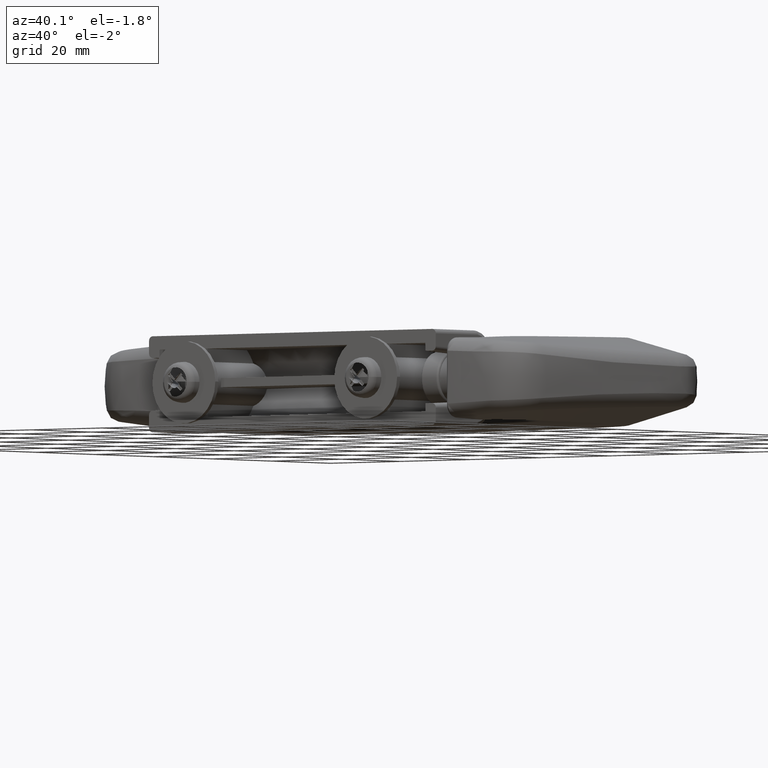
[diagram: clean part render]
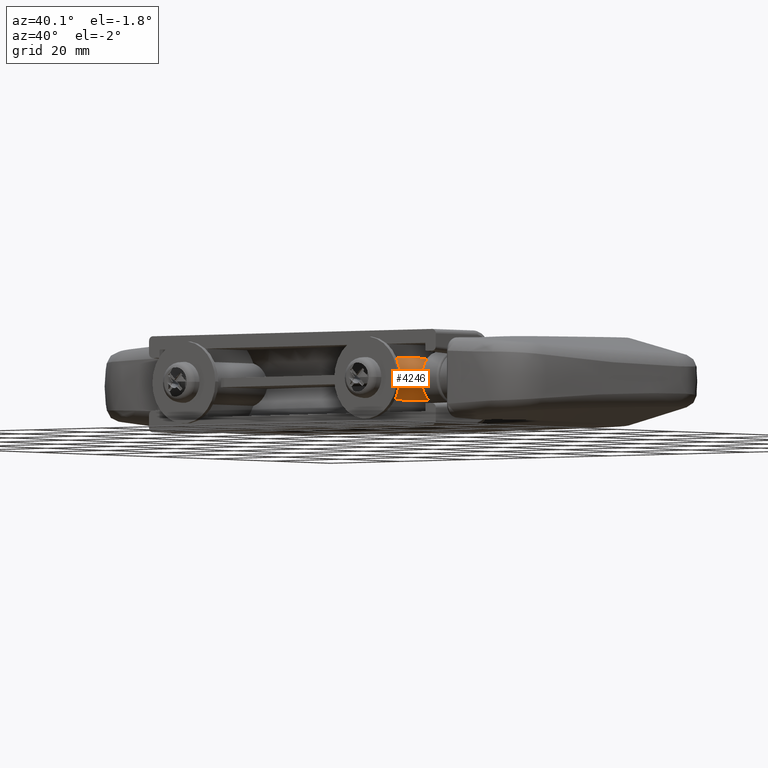
[diagram: same view with one face highlighted and labeled with its STEP entity id]
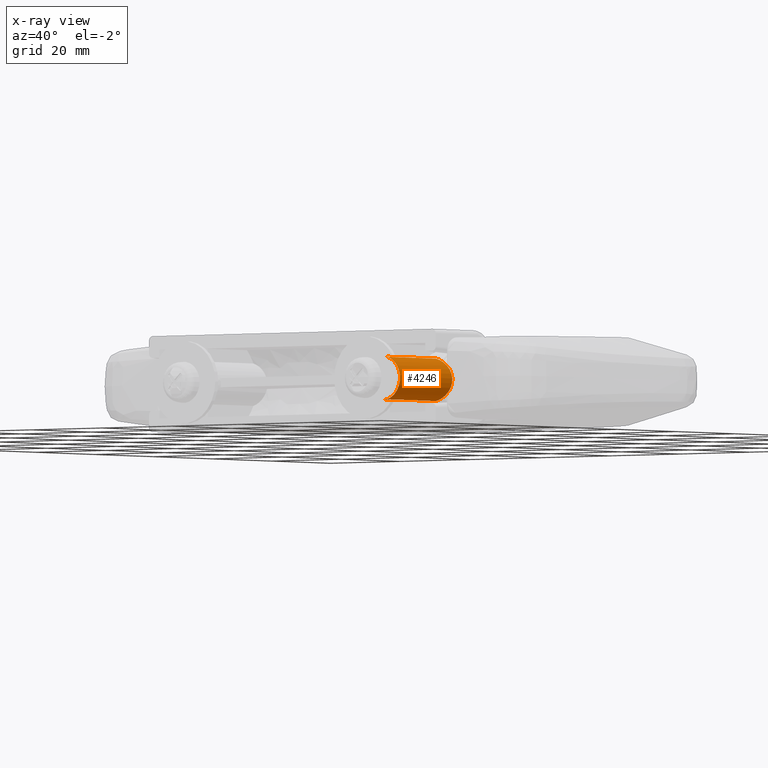
[diagram: x-ray of the same camera — body ghosted, the highlighted face saturated]
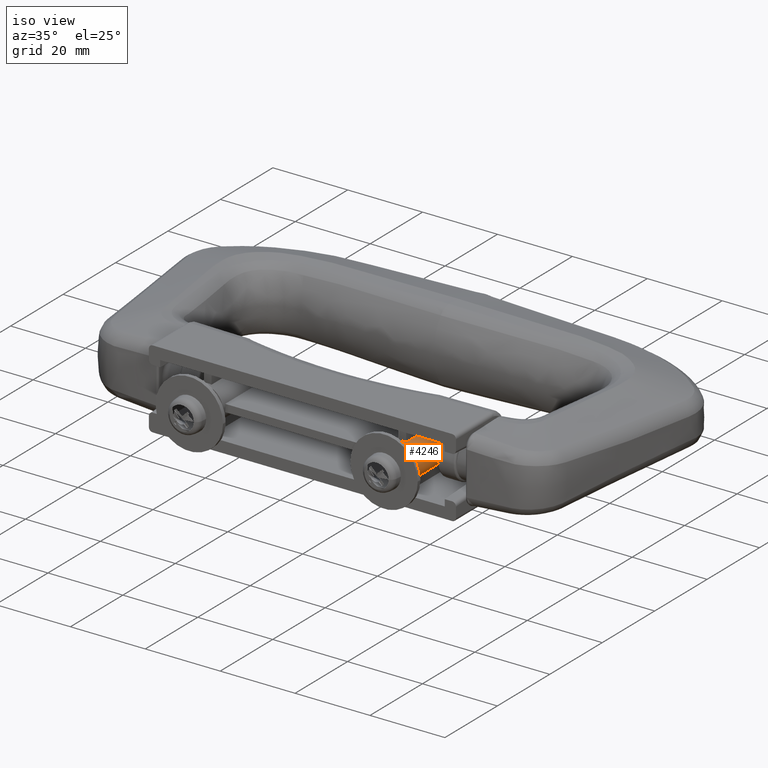
[diagram: same view with one face highlighted and labeled with its STEP entity id]
A machine part, auxiliary view. The second image highlights one B-rep face of the part: STEP entity #4246.
The next image is the same camera in x-ray: the body ghosted, the highlighted face saturated — about 0% of this face is hidden behind the body in this view.
A second angle (iso view) of the same face is appended — the face is thin or edge-on in the first view.
In plain terms, the highlighted cylindrical surface (edge-blend (fillet) strip) has radius 4.75 mm, axis along (-0, -1, -0).
Its self-contained STEP definition (entity closure, byte-faithful):
#327 = DIRECTION ( 'NONE',  ( 0.0000000000000000000, 1.000000000000000000, 0.0000000000000000000 ) ) ;
#435 = CARTESIAN_POINT ( 'NONE',  ( 28.02508257374490700, 16.81031448516132100, 4.305047742983723500 ) ) ;
#458 = VECTOR ( 'NONE', #14891, 1000.000000000000000 ) ;
#486 = CARTESIAN_POINT ( 'NONE',  ( 30.74987620718772200, 17.79994011339605800, 0.2778785948574167300 ) ) ;
#539 = CARTESIAN_POINT ( 'NONE',  ( 28.26398410360655300, 16.86941804879111100, -4.184179961310843700 ) ) ;
#660 = DIRECTION ( 'NONE',  ( 0.0000000000000000000, 0.0000000000000000000, -1.000000000000000000 ) ) ;
#878 = FACE_OUTER_BOUND ( 'NONE', #5424, .T. ) ;
#906 = CARTESIAN_POINT ( 'NONE',  ( 26.99999999999999600, 0.9999999999763531400, 4.643543905251678300 ) ) ;
#1174 = CARTESIAN_POINT ( 'NONE',  ( 26.99999999999999600, 0.9999999999763531400, -4.643543905251678300 ) ) ;
#1300 = ORIENTED_EDGE ( 'NONE', *, *, #15488, .T. ) ;
#1349 = CARTESIAN_POINT ( 'NONE',  ( 26.00000000000000000, 0.9999999999763531400, 0.0000000000000000000 ) ) ;
#1472 = CARTESIAN_POINT ( 'NONE',  ( 26.00000000000000000, 500000.0000000000600, 0.0000000000000000000 ) ) ;
#1593 = VERTEX_POINT ( 'NONE', #2210 ) ;
#1666 = CARTESIAN_POINT ( 'NONE',  ( 28.72138795296426000, 16.99730171424982600, 3.902371659246844700 ) ) ;
#1699 = CARTESIAN_POINT ( 'NONE',  ( 26.00000000000000000, 0.0000000000000000000, -4.750000000000000900 ) ) ;
#1721 = CARTESIAN_POINT ( 'NONE',  ( 30.72641726604576500, 17.78854121758022400, -0.5454029808521473300 ) ) ;
#1769 = CARTESIAN_POINT ( 'NONE',  ( 27.52847451237509400, 16.70781231319351400, -4.505381591677103600 ) ) ;
#2210 = CARTESIAN_POINT ( 'NONE',  ( 26.99999999999999600, 16.63112738771133100, -4.643543905251678300 ) ) ;
#2258 = AXIS2_PLACEMENT_3D ( 'NONE', #1472, #13755, #660 ) ;
#2314 = ORIENTED_EDGE ( 'NONE', *, *, #5993, .T. ) ;
#2575 = DIRECTION ( 'NONE',  ( 0.0000000000000000000, 0.0000000000000000000, -1.000000000000000000 ) ) ;
#2887 = CARTESIAN_POINT ( 'NONE',  ( 29.33182290581942200, 17.20030946078257400, 3.395787791628794400 ) ) ;
#2935 = CARTESIAN_POINT ( 'NONE',  ( 30.56275038287427000, 17.71105214065492500, -1.348124548711136600 ) ) ;
#2988 = CARTESIAN_POINT ( 'NONE',  ( 26.99999999999999600, 16.63112738771133100, -4.643543905251678300 ) ) ;
#3059 = AXIS2_PLACEMENT_3D ( 'NONE', #3689, #12016, #4875 ) ;
#3356 = CIRCLE ( 'NONE', #3059, 4.750000000000000900 ) ;
#3689 = CARTESIAN_POINT ( 'NONE',  ( 26.00000000000000000, 0.9999999999763531400, 0.0000000000000000000 ) ) ;
#4047 = CARTESIAN_POINT ( 'NONE',  ( 27.26734593513624100, 16.66384062093456100, 4.585970220025987300 ) ) ;
#4053 = VECTOR ( 'NONE', #9231, 1000.000000000000000 ) ;
#4091 = CARTESIAN_POINT ( 'NONE',  ( 29.85427868096976700, 17.40126337079676900, 2.788959524769022600 ) ) ;
#4146 = CARTESIAN_POINT ( 'NONE',  ( 30.26752078646657700, 17.57701010086558600, -2.102993780027234900 ) ) ;
#4246 = ADVANCED_FACE ( 'NONE', ( #878 ), #6896, .T. ) ;
#4424 = LINE ( 'NONE', #8042, #4053 ) ;
#4499 = DIRECTION ( 'NONE',  ( 0.0000000000000000000, 1.000000000000000000, 0.0000000000000000000 ) ) ;
#4518 = EDGE_CURVE ( 'NONE', #12891, #12140, #3356, .T. ) ;
#4766 = CARTESIAN_POINT ( 'NONE',  ( 26.00000000000000000, 0.9999999999763531400, -4.750000000000000900 ) ) ;
#4875 = DIRECTION ( 'NONE',  ( 0.0000000000000000000, 0.0000000000000000000, -1.000000000000000000 ) ) ;
#5074 = VERTEX_POINT ( 'NONE', #1699 ) ;
#5275 = CARTESIAN_POINT ( 'NONE',  ( 30.26587242333091200, 17.57629144129692700, 2.106115445772801300 ) ) ;
#5320 = CARTESIAN_POINT ( 'NONE',  ( 29.85109528093403200, 17.39997872080131800, -2.793228705593215500 ) ) ;
#5424 = EDGE_LOOP ( 'NONE', ( #1300, #14371, #7375, #10396, #13994, #2314, #7716, #11960 ) ) ;
#5806 = EDGE_CURVE ( 'NONE', #12891, #5074, #14875, .T. ) ;
#5863 = DIRECTION ( 'NONE',  ( -0.0000000000000000000, -1.000000000000000000, -0.0000000000000000000 ) ) ;
#5993 = EDGE_CURVE ( 'NONE', #12140, #1593, #10990, .T. ) ;
#6104 = B_SPLINE_CURVE_WITH_KNOTS ( 'NONE', 3,
 ( #13544, #4047, #7642, #435, #8826, #1666, #10034, #2887, #11231, #4091, #12408, #5275, #13592, #6474, #14797, #7691, #486, #8873, #1721, #10082, #2935, #11277, #4146, #12455, #5320, #13641, #6527, #14843, #7741, #539, #8923, #1769, #10134, #2988 ),
 .UNSPECIFIED., .F., .F.,
 ( 4, 2, 2, 2, 2, 2, 2, 2, 2, 2, 2, 2, 2, 2, 2, 2, 4 ),
 ( 0.001356049355411268400, 0.002173404437698671900, 0.002990759519986075000, 0.003808114602273479400, 0.004625469684560883800, 0.005442824766848288600, 0.006260179849135691700, 0.007077534931423098300, 0.007894890013710503100, 0.008712245095997906200, 0.009529600178285311000, 0.01034695526057271600, 0.01116431034286012100, 0.01198166542514752700, 0.01279902050743493000, 0.01361637558972233700, 0.01443373067200974200 ),
 .UNSPECIFIED. ) ;
#6159 = CARTESIAN_POINT ( 'NONE',  ( 26.00000000000000000, 500000.0000000000600, -4.750000000000000900 ) ) ;
#6474 = CARTESIAN_POINT ( 'NONE',  ( 30.56296903855292900, 17.71115091356142600, 1.347597076328656200 ) ) ;
#6527 = CARTESIAN_POINT ( 'NONE',  ( 29.33216989673003600, 17.20041738071459400, -3.395539308129581300 ) ) ;
#6896 = CYLINDRICAL_SURFACE ( 'NONE', #2258, 4.750000000000000900 ) ;
#7375 = ORIENTED_EDGE ( 'NONE', *, *, #14753, .T. ) ;
#7530 = CARTESIAN_POINT ( 'NONE',  ( 26.00000000000000000, 0.0000000000000000000, 0.0000000000000000000 ) ) ;
#7642 = CARTESIAN_POINT ( 'NONE',  ( 27.52772913497992800, 16.70769094888256100, 4.505600868914680900 ) ) ;
#7691 = CARTESIAN_POINT ( 'NONE',  ( 30.72559675130026600, 17.78814720297559400, 0.5519871133608981200 ) ) ;
#7716 = ORIENTED_EDGE ( 'NONE', *, *, #8105, .F. ) ;
#7741 = CARTESIAN_POINT ( 'NONE',  ( 28.71615905277511500, 16.99577236078537000, -3.905824621008339400 ) ) ;
#7784 = CARTESIAN_POINT ( 'NONE',  ( 26.99999999999999600, 500000.0000000000600, 4.643543905251678300 ) ) ;
#7820 = VECTOR ( 'NONE', #4499, 1000.000000000000000 ) ;
#8042 = CARTESIAN_POINT ( 'NONE',  ( 26.00000000000000000, 500000.0000000000600, 4.750000000000000900 ) ) ;
#8105 = EDGE_CURVE ( 'NONE', #11826, #1593, #6104, .T. ) ;
#8461 = CARTESIAN_POINT ( 'NONE',  ( 26.00000000000000000, 0.9999999999763531400, 4.750000000000000900 ) ) ;
#8595 = CARTESIAN_POINT ( 'NONE',  ( 26.00000000000000000, 0.0000000000000000000, 4.750000000000000900 ) ) ;
#8713 = DIRECTION ( 'NONE',  ( 0.0000000000000000000, 0.0000000000000000000, 1.000000000000000000 ) ) ;
#8826 = CARTESIAN_POINT ( 'NONE',  ( 28.26472687077319500, 16.86955828499319700, 4.183953771040123100 ) ) ;
#8841 = AXIS2_PLACEMENT_3D ( 'NONE', #7530, #327, #8713 ) ;
#8873 = CARTESIAN_POINT ( 'NONE',  ( 30.75012284286284400, 17.80005942704829300, -0.2736301788922341800 ) ) ;
#8903 = EDGE_CURVE ( 'NONE', #11826, #15014, #13542, .T. ) ;
#8923 = CARTESIAN_POINT ( 'NONE',  ( 28.02681530412177200, 16.81070461345418100, -4.304267341209694600 ) ) ;
#9147 = CARTESIAN_POINT ( 'NONE',  ( 26.99999999999999600, 16.63112738771133100, 4.643543905251678300 ) ) ;
#9231 = DIRECTION ( 'NONE',  ( -0.0000000000000000000, -1.000000000000000000, -0.0000000000000000000 ) ) ;
#9424 = CIRCLE ( 'NONE', #8841, 4.750000000000000900 ) ;
#9723 = DIRECTION ( 'NONE',  ( 0.0000000000000000000, -1.000000000000000000, 0.0000000000000000000 ) ) ;
#10034 = CARTESIAN_POINT ( 'NONE',  ( 28.93433386581422100, 17.06455818438137600, 3.744609908311279600 ) ) ;
#10082 = CARTESIAN_POINT ( 'NONE',  ( 30.63326274406040300, 17.74428567683729000, -1.081369931517288200 ) ) ;
#10134 = CARTESIAN_POINT ( 'NONE',  ( 27.26541681486766000, 16.66360456811542800, -4.586385661401763500 ) ) ;
#10199 = EDGE_CURVE ( 'NONE', #14529, #13894, #4424, .T. ) ;
#10396 = ORIENTED_EDGE ( 'NONE', *, *, #5806, .F. ) ;
#10990 = LINE ( 'NONE', #11643, #7820 ) ;
#11231 = CARTESIAN_POINT ( 'NONE',  ( 29.51752361458734300, 17.26930346109502400, 3.203246322431077000 ) ) ;
#11277 = CARTESIAN_POINT ( 'NONE',  ( 30.37954114141490100, 17.62726660793008500, -1.858964831806173800 ) ) ;
#11643 = CARTESIAN_POINT ( 'NONE',  ( 26.99999999999999600, 500000.0000000000600, -4.643543905251678300 ) ) ;
#11826 = VERTEX_POINT ( 'NONE', #9147 ) ;
#11960 = ORIENTED_EDGE ( 'NONE', *, *, #8903, .T. ) ;
#12016 = DIRECTION ( 'NONE',  ( 0.0000000000000000000, -1.000000000000000000, 0.0000000000000000000 ) ) ;
#12140 = VERTEX_POINT ( 'NONE', #1174 ) ;
#12408 = CARTESIAN_POINT ( 'NONE',  ( 30.00378188611031800, 17.46353873175705100, 2.569653753229642000 ) ) ;
#12455 = CARTESIAN_POINT ( 'NONE',  ( 30.00389897574335800, 17.46357964271274800, -2.569651628873646400 ) ) ;
#12891 = VERTEX_POINT ( 'NONE', #4766 ) ;
#13542 = LINE ( 'NONE', #7784, #458 ) ;
#13544 = CARTESIAN_POINT ( 'NONE',  ( 26.99999999999999600, 16.63112738771133100, 4.643543905251678300 ) ) ;
#13592 = CARTESIAN_POINT ( 'NONE',  ( 30.37899543243777600, 17.62701826868112000, 1.860404076966106800 ) ) ;
#13641 = CARTESIAN_POINT ( 'NONE',  ( 29.51564544046381400, 17.26860526235056500, -3.205198683622974400 ) ) ;
#13755 = DIRECTION ( 'NONE',  ( -0.0000000000000000000, -1.000000000000000000, -0.0000000000000000000 ) ) ;
#13894 = VERTEX_POINT ( 'NONE', #8595 ) ;
#13994 = ORIENTED_EDGE ( 'NONE', *, *, #4518, .T. ) ;
#14371 = ORIENTED_EDGE ( 'NONE', *, *, #10199, .T. ) ;
#14508 = VECTOR ( 'NONE', #5863, 1000.000000000000000 ) ;
#14529 = VERTEX_POINT ( 'NONE', #8461 ) ;
#14753 = EDGE_CURVE ( 'NONE', #13894, #5074, #9424, .T. ) ;
#14797 = CARTESIAN_POINT ( 'NONE',  ( 30.63214132504726100, 17.74375721237613100, 1.085919506222891200 ) ) ;
#14843 = CARTESIAN_POINT ( 'NONE',  ( 28.93285314740935400, 17.06406310159364600, -3.745853151076129300 ) ) ;
#14875 = LINE ( 'NONE', #6159, #14508 ) ;
#14891 = DIRECTION ( 'NONE',  ( -0.0000000000000000000, -1.000000000000000000, -0.0000000000000000000 ) ) ;
#14909 = AXIS2_PLACEMENT_3D ( 'NONE', #1349, #9723, #2575 ) ;
#15014 = VERTEX_POINT ( 'NONE', #906 ) ;
#15173 = CIRCLE ( 'NONE', #14909, 4.750000000000000900 ) ;
#15488 = EDGE_CURVE ( 'NONE', #15014, #14529, #15173, .T. ) ;